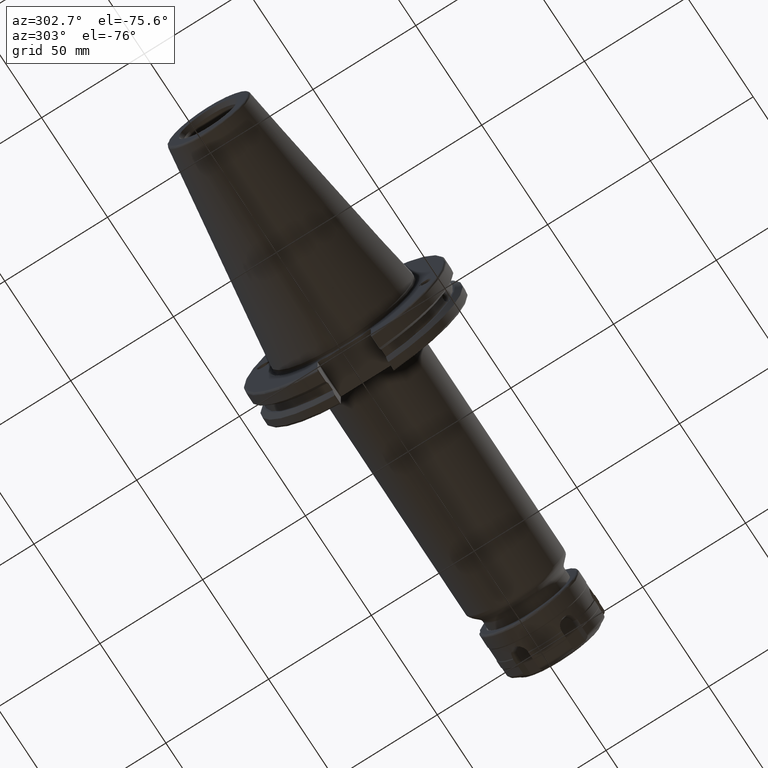
[diagram: clean part render]
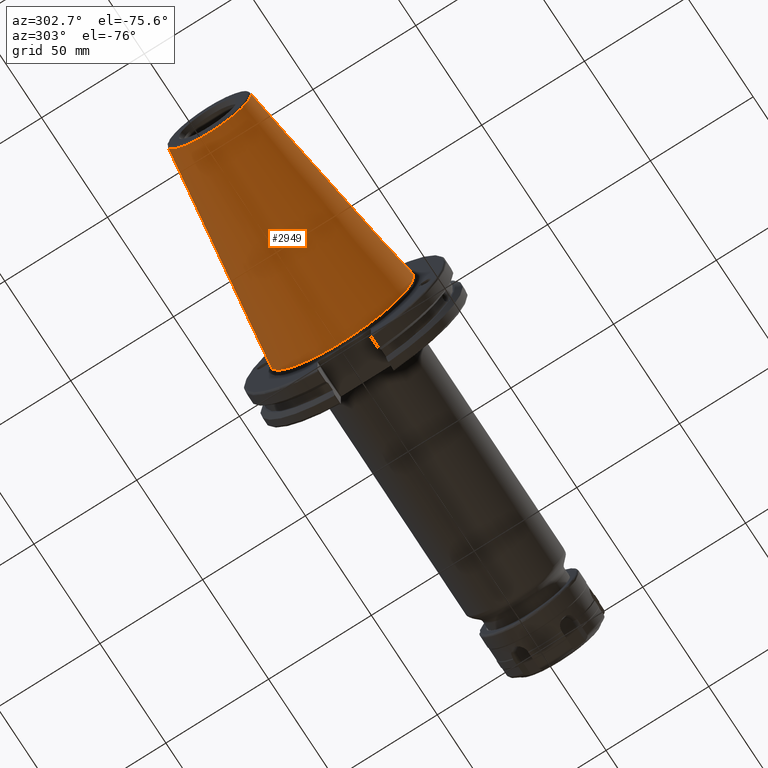
[diagram: same view with one face highlighted and labeled with its STEP entity id]
A machine part, auxiliary view. The second image highlights one B-rep face of the part: STEP entity #2949.
In plain terms, the highlighted conical surface has half-angle 8.297 deg.
Its self-contained STEP definition (entity closure, byte-faithful):
#269=LINE('',#5206,#439);
#439=VECTOR('',#3812,27.5166666666666);
#544=CONICAL_SURFACE('',#3258,27.5166666666666,0.14481249823894);
#720=FACE_OUTER_BOUND('',#904,.T.);
#904=EDGE_LOOP('',(#2291,#2292,#2293,#2294,#2295));
#1092=CIRCLE('',#3252,20.233121911427);
#1093=CIRCLE('',#3253,20.233121911427);
#1097=CIRCLE('',#3259,34.925);
#1334=VERTEX_POINT('',#5193);
#1335=VERTEX_POINT('',#5194);
#1338=VERTEX_POINT('',#5204);
#1692=EDGE_CURVE('',#1334,#1335,#1092,.T.);
#1693=EDGE_CURVE('',#1335,#1334,#1093,.T.);
#1697=EDGE_CURVE('',#1338,#1338,#1097,.T.);
#1698=EDGE_CURVE('',#1338,#1335,#269,.T.);
#2291=ORIENTED_EDGE('',*,*,#1697,.F.);
#2292=ORIENTED_EDGE('',*,*,#1698,.T.);
#2293=ORIENTED_EDGE('',*,*,#1692,.F.);
#2294=ORIENTED_EDGE('',*,*,#1693,.F.);
#2295=ORIENTED_EDGE('',*,*,#1698,.F.);
#2949=ADVANCED_FACE('',(#720),#544,.T.);
#3252=AXIS2_PLACEMENT_3D('',#5195,#3796,#3797);
#3253=AXIS2_PLACEMENT_3D('',#5196,#3798,#3799);
#3258=AXIS2_PLACEMENT_3D('',#5203,#3808,#3809);
#3259=AXIS2_PLACEMENT_3D('',#5205,#3810,#3811);
#3796=DIRECTION('center_axis',(-1.,0.,0.));
#3797=DIRECTION('ref_axis',(0.,-1.,3.06161699786838E-17));
#3798=DIRECTION('center_axis',(-1.,0.,0.));
#3799=DIRECTION('ref_axis',(0.,-1.,3.06161699786838E-17));
#3808=DIRECTION('center_axis',(1.,0.,0.));
#3809=DIRECTION('ref_axis',(0.,1.,0.));
#3810=DIRECTION('center_axis',(1.,0.,0.));
#3811=DIRECTION('ref_axis',(0.,0.,-1.));
#3812=DIRECTION('',(-0.989532981063281,0.144306893071729,1.76724974695192E-17));
#5193=CARTESIAN_POINT('',(-100.744306893072,-2.47784279855872E-15,20.233121911427));
#5194=CARTESIAN_POINT('',(-100.744306893072,-20.233121911427,-2.47784279855872E-15));
#5195=CARTESIAN_POINT('Origin',(-100.744306893072,0.,-3.09730349819841E-15));
#5196=CARTESIAN_POINT('Origin',(-100.744306893072,0.,-3.09730349819841E-15));
#5203=CARTESIAN_POINT('Origin',(-50.8,0.,0.));
#5204=CARTESIAN_POINT('',(-8.88178419700125E-15,-34.925,-4.27707894602213E-15));
#5205=CARTESIAN_POINT('Origin',(0.,0.,0.));
#5206=CARTESIAN_POINT('',(-50.8,-27.5166666666666,-3.3698197756538E-15));